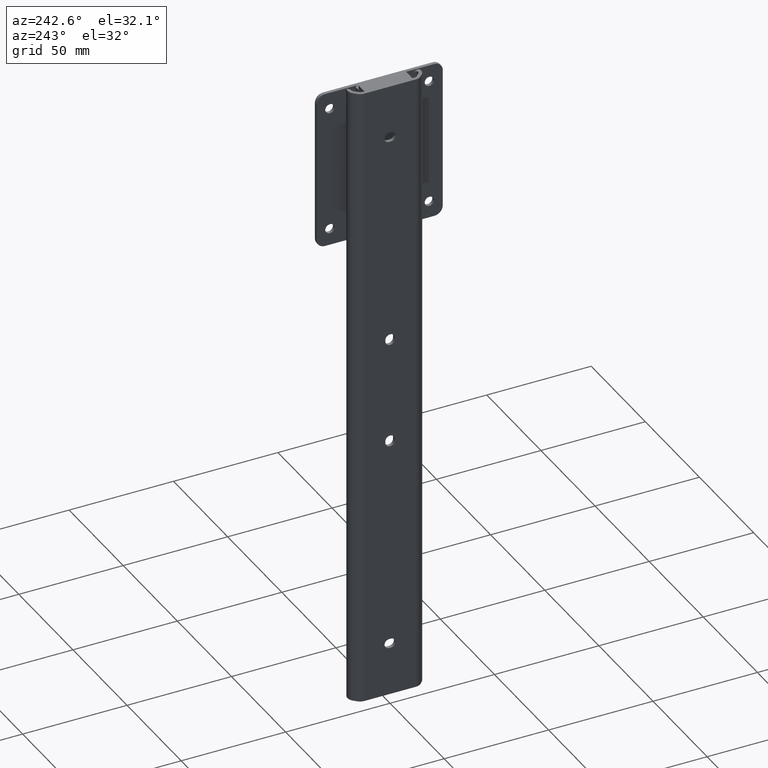
[diagram: clean part render]
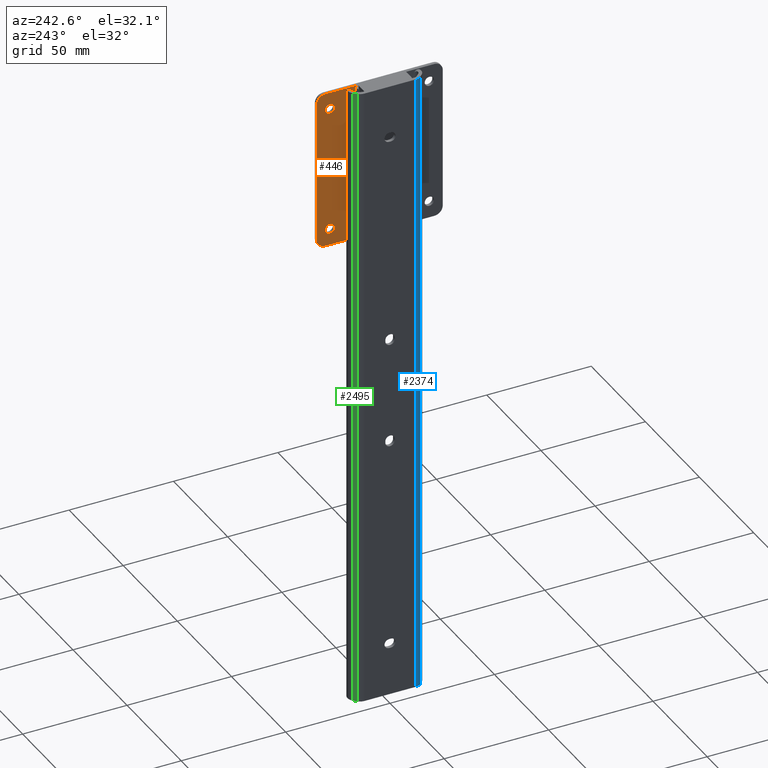
[diagram: same view with three faces highlighted in distinct colors, each labeled with its STEP entity id]
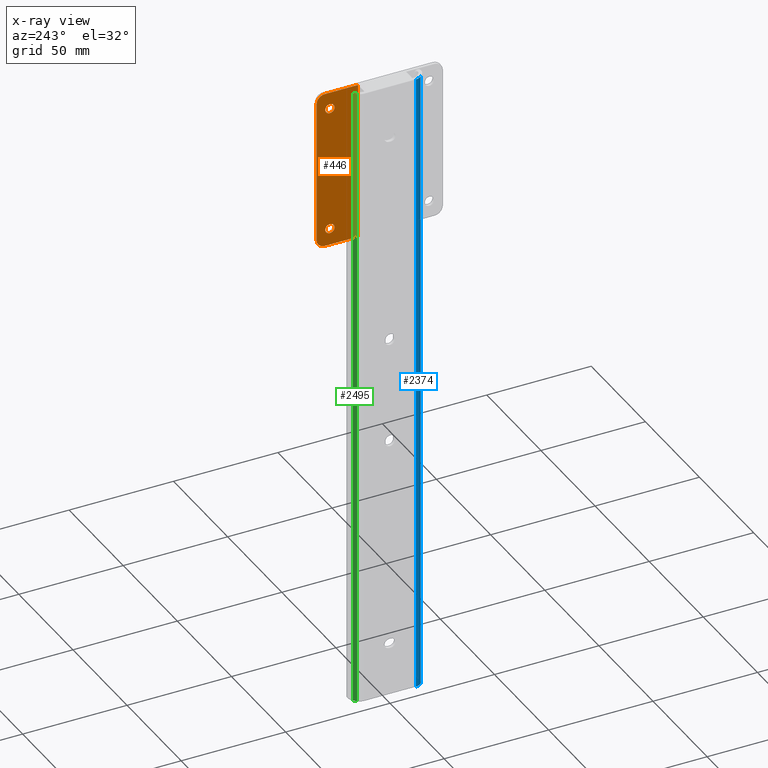
[diagram: x-ray of the same camera — body ghosted, the three highlighted faces saturated]
A machine part, auxiliary view with three faces highlighted in distinct colors.
The next image is the same camera in x-ray (body ghosted, the three faces saturated) — at least one of them is partly hidden behind the body in this view.
Their STEP definitions:

[orange] entity #446 — the highlighted planar face has unit normal (-1, 0, 0).
#14 = FACE_OUTER_BOUND ( 'NONE', #1752, .T. ) ;
#61 = ORIENTED_EDGE ( 'NONE', *, *, #1353, .T. ) ;
#85 = EDGE_CURVE ( 'NONE', #379, #162, #215, .T. ) ;
#134 = ORIENTED_EDGE ( 'NONE', *, *, #3268, .T. ) ;
#156 = CIRCLE ( 'NONE', #3533, 2.250000000000001776 ) ;
#162 = VERTEX_POINT ( 'NONE', #1675 ) ;
#215 = LINE ( 'NONE', #498, #1898 ) ;
#225 = CARTESIAN_POINT ( 'NONE',  ( 0.0000000000000000000, 23.79999999999999716, -10.25000000000000533 ) ) ;
#227 = ORIENTED_EDGE ( 'NONE', *, *, #1236, .T. ) ;
#256 = CARTESIAN_POINT ( 'NONE',  ( 0.0000000000000000000, 23.79999999999999716, -5.749999999999997335 ) ) ;
#273 = CIRCLE ( 'NONE', #1786, 2.250000000000001776 ) ;
#379 = VERTEX_POINT ( 'NONE', #3215 ) ;
#409 = LINE ( 'NONE', #1018, #3714 ) ;
#446 = ADVANCED_FACE ( 'NONE', ( #3174, #2617, #14 ), #2833, .T. ) ;
#486 = DIRECTION ( 'NONE',  ( 0.0000000000000000000, 0.0000000000000000000, -1.000000000000000000 ) ) ;
#498 = CARTESIAN_POINT ( 'NONE',  ( 0.0000000000000000000, 30.19999999999999929, 0.0000000000000000000 ) ) ;
#499 = VERTEX_POINT ( 'NONE', #553 ) ;
#503 = ORIENTED_EDGE ( 'NONE', *, *, #1919, .T. ) ;
#543 = DIRECTION ( 'NONE',  ( -1.000000000000000000, 0.0000000000000000000, 0.0000000000000000000 ) ) ;
#553 = CARTESIAN_POINT ( 'NONE',  ( 0.0000000000000000000, 26.19999999999999929, 0.0000000000000000000 ) ) ;
#583 = AXIS2_PLACEMENT_3D ( 'NONE', #2279, #543, #1428 ) ;
#609 = CARTESIAN_POINT ( 'NONE',  ( 0.0000000000000000000, 23.79999999999999716, -65.95000000000000284 ) ) ;
#749 = EDGE_LOOP ( 'NONE', ( #227, #61 ) ) ;
#781 = DIRECTION ( 'NONE',  ( 1.000000000000000000, 0.0000000000000000000, 0.0000000000000000000 ) ) ;
#965 = VECTOR ( 'NONE', #2826, 1000.000000000000000 ) ;
#1018 = CARTESIAN_POINT ( 'NONE',  ( 0.0000000000000000000, 30.19999999999999929, -76.20000000000000284 ) ) ;
#1055 = CARTESIAN_POINT ( 'NONE',  ( 0.0000000000000000000, 26.19999999999999929, -4.000000000000000000 ) ) ;
#1067 = VECTOR ( 'NONE', #1912, 1000.000000000000000 ) ;
#1130 = CARTESIAN_POINT ( 'NONE',  ( 0.0000000000000000000, 23.79999999999999716, -68.20000000000001705 ) ) ;
#1136 = CARTESIAN_POINT ( 'NONE',  ( 1.769417945496343236E-13, 10.32001492540623389, 0.0000000000000000000 ) ) ;
#1194 = CIRCLE ( 'NONE', #583, 4.000000000000003553 ) ;
#1236 = EDGE_CURVE ( 'NONE', #2362, #2933, #273, .T. ) ;
#1282 = EDGE_CURVE ( 'NONE', #2747, #1872, #2682, .T. ) ;
#1297 = ORIENTED_EDGE ( 'NONE', *, *, #1761, .T. ) ;
#1335 = EDGE_CURVE ( 'NONE', #499, #3260, #2488, .T. ) ;
#1353 = EDGE_CURVE ( 'NONE', #2933, #2362, #156, .T. ) ;
#1428 = DIRECTION ( 'NONE',  ( 0.0000000000000000000, 0.0000000000000000000, 1.000000000000000000 ) ) ;
#1558 = CARTESIAN_POINT ( 'NONE',  ( 0.0000000000000000000, 23.79999999999999716, -8.000000000000001776 ) ) ;
#1591 = DIRECTION ( 'NONE',  ( 0.0000000000000000000, 0.0000000000000000000, -1.000000000000000000 ) ) ;
#1620 = ORIENTED_EDGE ( 'NONE', *, *, #1335, .F. ) ;
#1622 = DIRECTION ( 'NONE',  ( 1.000000000000000000, 0.0000000000000000000, 0.0000000000000000000 ) ) ;
#1675 = CARTESIAN_POINT ( 'NONE',  ( 0.0000000000000000000, 30.19999999999999929, -3.999999999999998224 ) ) ;
#1752 = EDGE_LOOP ( 'NONE', ( #2098, #503, #2481, #134, #1620, #1297 ) ) ;
#1761 = EDGE_CURVE ( 'NONE', #499, #162, #3112, .T. ) ;
#1786 = AXIS2_PLACEMENT_3D ( 'NONE', #1130, #3426, #3442 ) ;
#1872 = VERTEX_POINT ( 'NONE', #256 ) ;
#1896 = DIRECTION ( 'NONE',  ( -0.0000000000000000000, 1.000000000000000000, 2.297646988048751882E-16 ) ) ;
#1898 = VECTOR ( 'NONE', #3067, 1000.000000000000000 ) ;
#1912 = DIRECTION ( 'NONE',  ( -0.0000000000000000000, -1.000000000000000000, -0.0000000000000000000 ) ) ;
#1919 = EDGE_CURVE ( 'NONE', #379, #3571, #1194, .T. ) ;
#1931 = DIRECTION ( 'NONE',  ( 0.0000000000000000000, 0.0000000000000000000, -1.000000000000000000 ) ) ;
#1982 = LINE ( 'NONE', #2243, #965 ) ;
#2025 = CARTESIAN_POINT ( 'NONE',  ( 0.0000000000000000000, 0.0000000000000000000, 0.0000000000000000000 ) ) ;
#2098 = ORIENTED_EDGE ( 'NONE', *, *, #85, .F. ) ;
#2215 = ORIENTED_EDGE ( 'NONE', *, *, #3145, .T. ) ;
#2243 = CARTESIAN_POINT ( 'NONE',  ( 1.769417945496343236E-13, 10.32001492540623389, -76.20000000000000284 ) ) ;
#2269 = EDGE_CURVE ( 'NONE', #2894, #3571, #409, .T. ) ;
#2279 = CARTESIAN_POINT ( 'NONE',  ( 0.0000000000000000000, 26.19999999999999929, -72.20000000000000284 ) ) ;
#2362 = VERTEX_POINT ( 'NONE', #609 ) ;
#2386 = AXIS2_PLACEMENT_3D ( 'NONE', #1055, #3596, #3066 ) ;
#2446 = CARTESIAN_POINT ( 'NONE',  ( 0.0000000000000000000, 23.79999999999999716, -8.000000000000001776 ) ) ;
#2481 = ORIENTED_EDGE ( 'NONE', *, *, #2269, .F. ) ;
#2488 = LINE ( 'NONE', #3291, #1067 ) ;
#2545 = CARTESIAN_POINT ( 'NONE',  ( 0.0000000000000000000, 23.79999999999999716, -70.45000000000001705 ) ) ;
#2566 = DIRECTION ( 'NONE',  ( 0.0000000000000000000, 0.0000000000000000000, 1.000000000000000000 ) ) ;
#2575 = ORIENTED_EDGE ( 'NONE', *, *, #1282, .T. ) ;
#2617 = FACE_BOUND ( 'NONE', #749, .T. ) ;
#2618 = AXIS2_PLACEMENT_3D ( 'NONE', #2025, #2866, #2566 ) ;
#2682 = CIRCLE ( 'NONE', #3168, 2.250000000000003553 ) ;
#2747 = VERTEX_POINT ( 'NONE', #225 ) ;
#2826 = DIRECTION ( 'NONE',  ( 0.0000000000000000000, 0.0000000000000000000, 1.000000000000000000 ) ) ;
#2833 = PLANE ( 'NONE',  #2618 ) ;
#2840 = EDGE_LOOP ( 'NONE', ( #2215, #2575 ) ) ;
#2866 = DIRECTION ( 'NONE',  ( -1.000000000000000000, 0.0000000000000000000, 0.0000000000000000000 ) ) ;
#2894 = VERTEX_POINT ( 'NONE', #3152 ) ;
#2933 = VERTEX_POINT ( 'NONE', #2545 ) ;
#3066 = DIRECTION ( 'NONE',  ( 0.0000000000000000000, 0.0000000000000000000, 1.000000000000000000 ) ) ;
#3067 = DIRECTION ( 'NONE',  ( -0.0000000000000000000, -0.0000000000000000000, 1.000000000000000000 ) ) ;
#3112 = CIRCLE ( 'NONE', #2386, 4.000000000000000000 ) ;
#3145 = EDGE_CURVE ( 'NONE', #1872, #2747, #3479, .T. ) ;
#3152 = CARTESIAN_POINT ( 'NONE',  ( 0.0000000000000000000, 10.32001492540627474, -76.20000000000000284 ) ) ;
#3168 = AXIS2_PLACEMENT_3D ( 'NONE', #1558, #3610, #1591 ) ;
#3174 = FACE_BOUND ( 'NONE', #2840, .T. ) ;
#3181 = AXIS2_PLACEMENT_3D ( 'NONE', #2446, #1622, #486 ) ;
#3215 = CARTESIAN_POINT ( 'NONE',  ( 0.0000000000000000000, 30.19999999999999929, -72.19999999999997442 ) ) ;
#3231 = CARTESIAN_POINT ( 'NONE',  ( 0.0000000000000000000, 26.19999999999999929, -76.20000000000000284 ) ) ;
#3260 = VERTEX_POINT ( 'NONE', #1136 ) ;
#3268 = EDGE_CURVE ( 'NONE', #2894, #3260, #1982, .T. ) ;
#3291 = CARTESIAN_POINT ( 'NONE',  ( 0.0000000000000000000, 0.0000000000000000000, 0.0000000000000000000 ) ) ;
#3342 = CARTESIAN_POINT ( 'NONE',  ( 0.0000000000000000000, 23.79999999999999716, -68.20000000000001705 ) ) ;
#3426 = DIRECTION ( 'NONE',  ( 1.000000000000000000, 0.0000000000000000000, 0.0000000000000000000 ) ) ;
#3442 = DIRECTION ( 'NONE',  ( 0.0000000000000000000, 0.0000000000000000000, -1.000000000000000000 ) ) ;
#3479 = CIRCLE ( 'NONE', #3181, 2.250000000000003553 ) ;
#3533 = AXIS2_PLACEMENT_3D ( 'NONE', #3342, #781, #1931 ) ;
#3571 = VERTEX_POINT ( 'NONE', #3231 ) ;
#3596 = DIRECTION ( 'NONE',  ( -1.000000000000000000, 0.0000000000000000000, 0.0000000000000000000 ) ) ;
#3610 = DIRECTION ( 'NONE',  ( 1.000000000000000000, 0.0000000000000000000, 0.0000000000000000000 ) ) ;
#3714 = VECTOR ( 'NONE', #1896, 1000.000000000000000 ) ;

[blue] entity #2374 — the highlighted cylindrical surface (edge-blend (fillet) strip) has radius 4 mm, axis along (0, 0, 1).
#33 = CYLINDRICAL_SURFACE ( 'NONE', #348, 3.999999999999991562 ) ;
#34 = LINE ( 'NONE', #977, #1307 ) ;
#39 = ORIENTED_EDGE ( 'NONE', *, *, #546, .F. ) ;
#210 = VECTOR ( 'NONE', #746, 1000.000000000000000 ) ;
#348 = AXIS2_PLACEMENT_3D ( 'NONE', #1473, #3491, #3211 ) ;
#523 = AXIS2_PLACEMENT_3D ( 'NONE', #1707, #2239, #3721 ) ;
#546 = EDGE_CURVE ( 'NONE', #1676, #3686, #34, .T. ) ;
#724 = EDGE_LOOP ( 'NONE', ( #1656, #39, #904, #2593 ) ) ;
#746 = DIRECTION ( 'NONE',  ( 0.0000000000000000000, 0.0000000000000000000, 1.000000000000000000 ) ) ;
#830 = CIRCLE ( 'NONE', #523, 3.999999999999991562 ) ;
#845 = EDGE_CURVE ( 'NONE', #3686, #1849, #1901, .T. ) ;
#859 = CARTESIAN_POINT ( 'NONE',  ( 8.326672684688674053E-14, -12.34171572921509075, 0.0000000000000000000 ) ) ;
#904 = ORIENTED_EDGE ( 'NONE', *, *, #1861, .T. ) ;
#977 = CARTESIAN_POINT ( 'NONE',  ( 8.326672684688674053E-14, -12.34171572921509075, -304.8000000000000114 ) ) ;
#1000 = CARTESIAN_POINT ( 'NONE',  ( 8.326672684688674053E-14, -12.34171572921509075, -304.8000000000000114 ) ) ;
#1021 = CARTESIAN_POINT ( 'NONE',  ( 1.171572875253803492, -15.17014285396116513, 0.0000000000000000000 ) ) ;
#1062 = AXIS2_PLACEMENT_3D ( 'NONE', #2439, #3277, #2388 ) ;
#1092 = FACE_OUTER_BOUND ( 'NONE', #724, .T. ) ;
#1106 = EDGE_CURVE ( 'NONE', #1824, #1849, #3616, .T. ) ;
#1201 = DIRECTION ( 'NONE',  ( 0.0000000000000000000, 0.0000000000000000000, 1.000000000000000000 ) ) ;
#1287 = CARTESIAN_POINT ( 'NONE',  ( 1.171572875253803492, -15.17014285396116513, -304.8000000000000114 ) ) ;
#1307 = VECTOR ( 'NONE', #1201, 1000.000000000000000 ) ;
#1473 = CARTESIAN_POINT ( 'NONE',  ( 4.000000000000069278, -12.34171572921506232, -304.8000000000000114 ) ) ;
#1656 = ORIENTED_EDGE ( 'NONE', *, *, #845, .F. ) ;
#1676 = VERTEX_POINT ( 'NONE', #1000 ) ;
#1707 = CARTESIAN_POINT ( 'NONE',  ( 4.000000000000069278, -12.34171572921506232, -304.8000000000000114 ) ) ;
#1824 = VERTEX_POINT ( 'NONE', #1287 ) ;
#1849 = VERTEX_POINT ( 'NONE', #1021 ) ;
#1861 = EDGE_CURVE ( 'NONE', #1676, #1824, #830, .T. ) ;
#1901 = CIRCLE ( 'NONE', #1062, 3.999999999999991562 ) ;
#2186 = CARTESIAN_POINT ( 'NONE',  ( 1.171572875253803492, -15.17014285396116513, -304.8000000000000114 ) ) ;
#2239 = DIRECTION ( 'NONE',  ( 0.0000000000000000000, 0.0000000000000000000, 1.000000000000000000 ) ) ;
#2374 = ADVANCED_FACE ( 'NONE', ( #1092 ), #33, .T. ) ;
#2388 = DIRECTION ( 'NONE',  ( 1.000000000000000000, 0.0000000000000000000, 0.0000000000000000000 ) ) ;
#2439 = CARTESIAN_POINT ( 'NONE',  ( 4.000000000000069278, -12.34171572921506232, 0.0000000000000000000 ) ) ;
#2593 = ORIENTED_EDGE ( 'NONE', *, *, #1106, .T. ) ;
#3211 = DIRECTION ( 'NONE',  ( 1.000000000000000000, 0.0000000000000000000, 0.0000000000000000000 ) ) ;
#3277 = DIRECTION ( 'NONE',  ( 0.0000000000000000000, 0.0000000000000000000, 1.000000000000000000 ) ) ;
#3491 = DIRECTION ( 'NONE',  ( 0.0000000000000000000, 0.0000000000000000000, 1.000000000000000000 ) ) ;
#3616 = LINE ( 'NONE', #2186, #210 ) ;
#3686 = VERTEX_POINT ( 'NONE', #859 ) ;
#3721 = DIRECTION ( 'NONE',  ( 1.000000000000000000, 0.0000000000000000000, 0.0000000000000000000 ) ) ;

[green] entity #2495 — the highlighted planar face has unit normal (-0.7071, 0.7071, 0).
#148 = ORIENTED_EDGE ( 'NONE', *, *, #509, .T. ) ;
#268 = VECTOR ( 'NONE', #1968, 1000.000000000000000 ) ;
#305 = EDGE_CURVE ( 'NONE', #415, #3515, #595, .T. ) ;
#317 = DIRECTION ( 'NONE',  ( -0.7071067811865232589, -0.7071067811865717756, -0.0000000000000000000 ) ) ;
#335 = LINE ( 'NONE', #985, #1921 ) ;
#415 = VERTEX_POINT ( 'NONE', #2345 ) ;
#509 = EDGE_CURVE ( 'NONE', #1220, #1313, #3453, .T. ) ;
#595 = LINE ( 'NONE', #2307, #2981 ) ;
#721 = PLANE ( 'NONE',  #1673 ) ;
#740 = CARTESIAN_POINT ( 'NONE',  ( 1.171572875253840795, 15.17014285396247431, 0.0000000000000000000 ) ) ;
#816 = CARTESIAN_POINT ( 'NONE',  ( 1.171572875253840795, 15.17014285396247431, -304.8000000000000114 ) ) ;
#948 = ORIENTED_EDGE ( 'NONE', *, *, #3395, .F. ) ;
#985 = CARTESIAN_POINT ( 'NONE',  ( 1.171572875253840795, 15.17014285396247431, 0.0000000000000000000 ) ) ;
#1165 = DIRECTION ( 'NONE',  ( 0.0000000000000000000, 0.0000000000000000000, 1.000000000000000000 ) ) ;
#1220 = VERTEX_POINT ( 'NONE', #2966 ) ;
#1313 = VERTEX_POINT ( 'NONE', #740 ) ;
#1374 = VECTOR ( 'NONE', #2721, 1000.000000000000000 ) ;
#1673 = AXIS2_PLACEMENT_3D ( 'NONE', #1875, #3018, #3228 ) ;
#1820 = CARTESIAN_POINT ( 'NONE',  ( 2.485715010877481035, 16.48428498958610788, 0.0000000000000000000 ) ) ;
#1866 = LINE ( 'NONE', #3010, #1374 ) ;
#1875 = CARTESIAN_POINT ( 'NONE',  ( 1.171572875253840795, 15.17014285396247431, -304.8000000000000114 ) ) ;
#1921 = VECTOR ( 'NONE', #317, 1000.000000000000000 ) ;
#1968 = DIRECTION ( 'NONE',  ( 0.0000000000000000000, 0.0000000000000000000, 1.000000000000000000 ) ) ;
#2091 = EDGE_LOOP ( 'NONE', ( #948, #2424, #3499, #148 ) ) ;
#2292 = EDGE_CURVE ( 'NONE', #415, #1220, #1866, .T. ) ;
#2307 = CARTESIAN_POINT ( 'NONE',  ( 2.485715010877481035, 16.48428498958610788, -304.8000000000000114 ) ) ;
#2345 = CARTESIAN_POINT ( 'NONE',  ( 2.485715010877481035, 16.48428498958610788, -304.8000000000000114 ) ) ;
#2424 = ORIENTED_EDGE ( 'NONE', *, *, #305, .F. ) ;
#2495 = ADVANCED_FACE ( 'NONE', ( #3582 ), #721, .T. ) ;
#2721 = DIRECTION ( 'NONE',  ( -0.7071067811865232589, -0.7071067811865717756, -0.0000000000000000000 ) ) ;
#2966 = CARTESIAN_POINT ( 'NONE',  ( 1.171572875253840795, 15.17014285396247431, -304.8000000000000114 ) ) ;
#2981 = VECTOR ( 'NONE', #1165, 1000.000000000000000 ) ;
#3010 = CARTESIAN_POINT ( 'NONE',  ( 1.171572875253840795, 15.17014285396247431, -304.8000000000000114 ) ) ;
#3018 = DIRECTION ( 'NONE',  ( -0.7071067811865717756, 0.7071067811865232589, 0.0000000000000000000 ) ) ;
#3228 = DIRECTION ( 'NONE',  ( -0.7071067811865232589, -0.7071067811865717756, 0.0000000000000000000 ) ) ;
#3395 = EDGE_CURVE ( 'NONE', #3515, #1313, #335, .T. ) ;
#3453 = LINE ( 'NONE', #816, #268 ) ;
#3499 = ORIENTED_EDGE ( 'NONE', *, *, #2292, .T. ) ;
#3515 = VERTEX_POINT ( 'NONE', #1820 ) ;
#3582 = FACE_OUTER_BOUND ( 'NONE', #2091, .T. ) ;